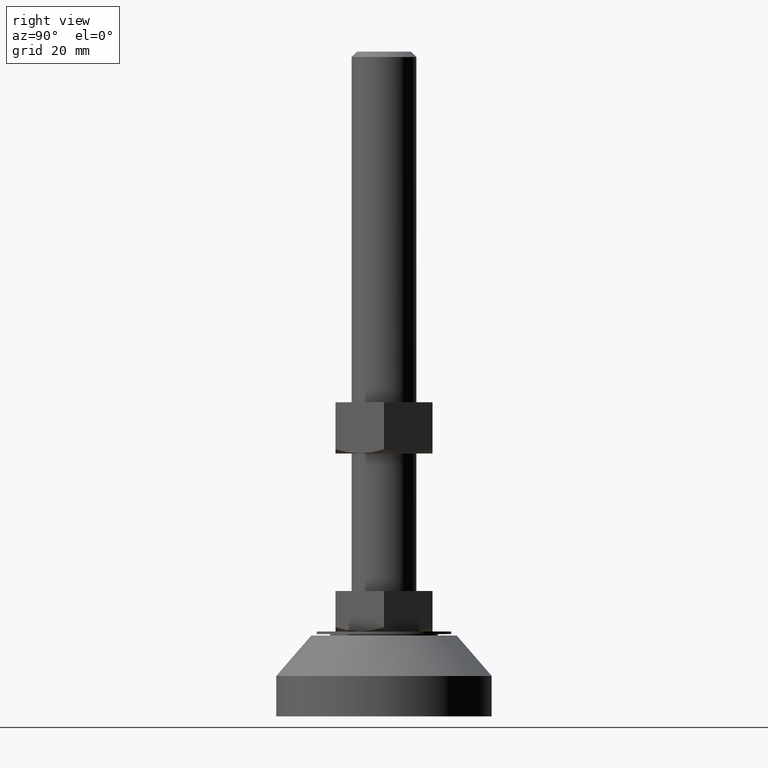
[diagram: clean part render]
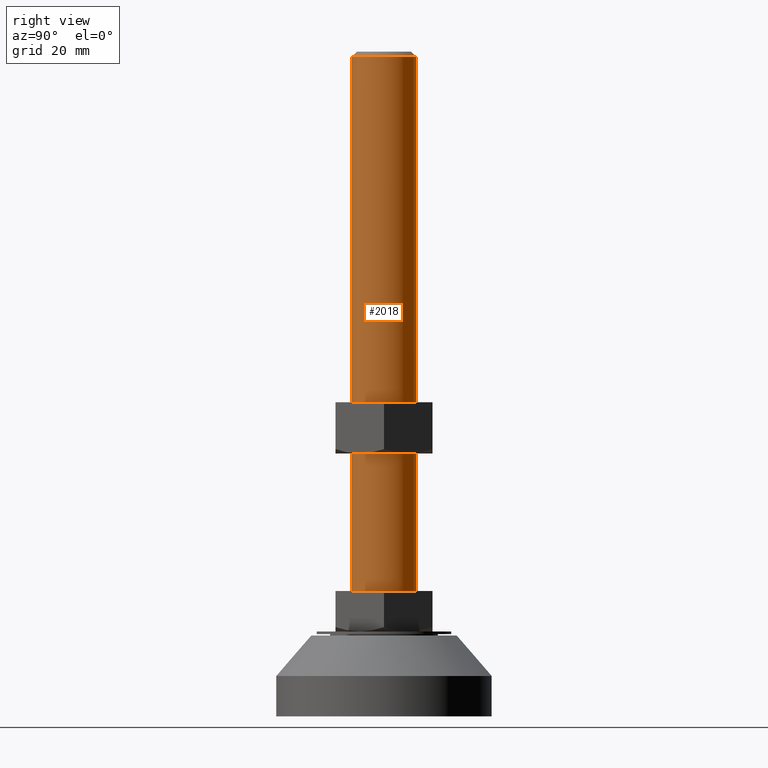
[diagram: same view with one face highlighted and labeled with its STEP entity id]
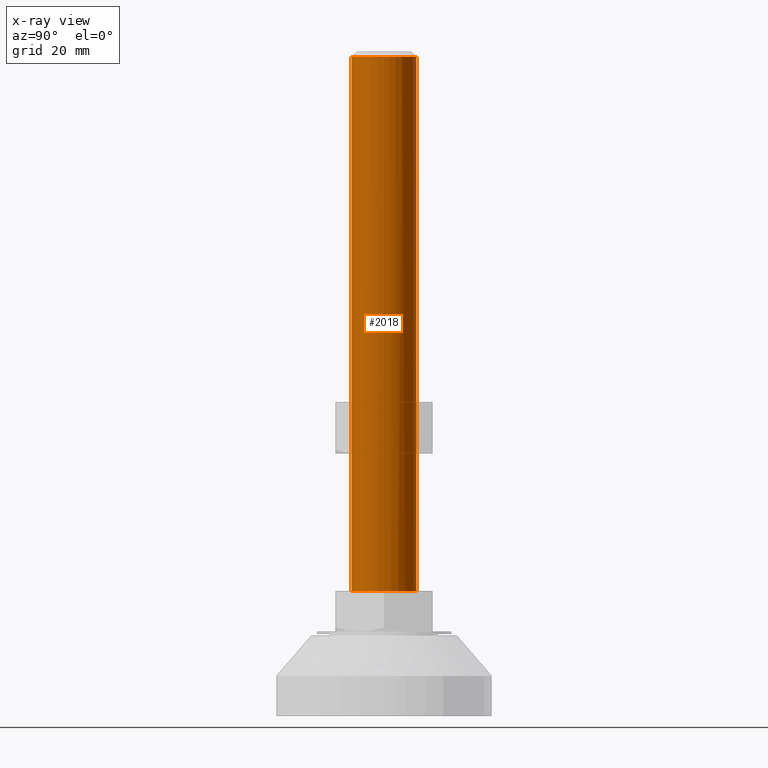
[diagram: x-ray of the same camera — body ghosted, the highlighted face saturated]
A machine part, right view. The second image highlights one B-rep face of the part: STEP entity #2018.
The next image is the same camera in x-ray: the body ghosted, the highlighted face saturated — about 0% of this face is hidden behind the body in this view.
In plain terms, the highlighted face is a freeform B-spline surface patch.
Its self-contained STEP definition (entity closure, byte-faithful):
#1635=CARTESIAN_POINT('',(0.104718426982725,11.999543076818901,244.499999999885400));
#1636=VERTEX_POINT('',#1635);
#1651=CARTESIAN_POINT('',(0.732582475315398,-11.977617581127030,244.499999999881310));
#1652=VERTEX_POINT('',#1651);
#1658=CARTESIAN_POINT('',(12.000000000000600,0.0,244.500000000000000));
#1659=VERTEX_POINT('',#1658);
#1660=CARTESIAN_POINT('',(12.000000000000600,0.0,244.500000000000000));
#1661=CARTESIAN_POINT('',(12.000000000004221,-11.288472802087924,244.499999999940600));
#1662=CARTESIAN_POINT('',(0.732582475315398,-11.977617581127026,244.499999999881280));
#1670=(BOUNDED_CURVE()B_SPLINE_CURVE(2,(#1660,#1661,#1662),.UNSPECIFIED.,.F.,.U.)B_SPLINE_CURVE_WITH_KNOTS((3,3),(0.500000000000000,0.739332962229150),.UNSPECIFIED.)CURVE()GEOMETRIC_REPRESENTATION_ITEM()RATIONAL_B_SPLINE_CURVE((1.0,0.719603993298184,0.976072041645729))REPRESENTATION_ITEM(''));
#1671=EDGE_CURVE('',#1659,#1652,#1670,.T.);
#1673=CARTESIAN_POINT('',(0.104718426982725,11.999543076818894,244.499999999885380));
#1674=CARTESIAN_POINT('',(11.999999999996971,11.895734526165844,244.499999999944630));
#1675=CARTESIAN_POINT('',(12.000000000000600,0.0,244.500000000000000));
#1683=(BOUNDED_CURVE()B_SPLINE_CURVE(2,(#1673,#1674,#1675),.UNSPECIFIED.,.F.,.U.)B_SPLINE_CURVE_WITH_KNOTS((3,3),(0.251539894349809,0.500000000000000),.UNSPECIFIED.)CURVE()GEOMETRIC_REPRESENTATION_ITEM()RATIONAL_B_SPLINE_CURVE((0.996414028066104,0.708910879637541,1.0))REPRESENTATION_ITEM(''));
#1684=EDGE_CURVE('',#1636,#1659,#1683,.T.);
#1722=CARTESIAN_POINT('',(-0.104718426982723,-11.999543076818901,244.499999999885290));
#1723=VERTEX_POINT('',#1722);
#1737=CARTESIAN_POINT('',(0.732582475315398,-11.977617581127030,244.499999999881310));
#1738=CARTESIAN_POINT('',(0.453863671618293,-11.994666030452640,244.499999999882700));
#1739=CARTESIAN_POINT('',(0.174506334172931,-12.001981370697790,244.499999999883810));
#1740=CARTESIAN_POINT('',(-0.104718426982723,-11.999543076818901,244.499999999885290));
#1741=B_SPLINE_CURVE_WITH_KNOTS('',3,(#1737,#1738,#1739,#1740),.UNSPECIFIED.,.F.,.U.,(4,4),(0.000000028863797,0.837768674032188),.UNSPECIFIED.);
#1742=EDGE_CURVE('',#1652,#1723,#1741,.T.);
#1951=CARTESIAN_POINT('',(0.104718425980489,11.999543076770269,249.450000000000100));
#1952=CARTESIAN_POINT('',(12.104261502750761,11.894824650789785,249.449999999999990));
#1953=CARTESIAN_POINT('',(11.999543076770269,-0.104718425980489,249.450000000000100));
#1954=CARTESIAN_POINT('',(11.894824650789785,-12.104261502750761,249.449999999999990));
#1955=CARTESIAN_POINT('',(-0.104718425980489,-11.999543076770269,249.450000000000100));
#1956=CARTESIAN_POINT('',(0.104718425980489,11.999543076770269,41.426250000000010));
#1957=CARTESIAN_POINT('',(12.104261502750761,11.894824650789785,41.426250000000017));
#1958=CARTESIAN_POINT('',(11.999543076770269,-0.104718425980489,41.426250000000010));
#1959=CARTESIAN_POINT('',(11.894824650789785,-12.104261502750761,41.426250000000017));
#1960=CARTESIAN_POINT('',(-0.104718425980489,-11.999543076770269,41.426250000000010));
#1968=(BOUNDED_SURFACE()B_SPLINE_SURFACE(2,1,((#1951,#1956),(#1952,#1957),(#1953,#1958),(#1954,#1959),(#1955,#1960)),.UNSPECIFIED.,.F.,.F.,.U.)B_SPLINE_SURFACE_WITH_KNOTS((3,2,3),(2,2),(0.0,19.882250993908919,39.764501987817852),(0.0,208.023750000000090),.UNSPECIFIED.)GEOMETRIC_REPRESENTATION_ITEM()RATIONAL_B_SPLINE_SURFACE(((1.0,1.0),(0.707106781186548,0.707106781186548),(1.0,1.0),(0.707106781186548,0.707106781186548),(1.0,1.0)))REPRESENTATION_ITEM('')SURFACE());
#1969=ORIENTED_EDGE('',*,*,#1684,.T.);
#1970=ORIENTED_EDGE('',*,*,#1671,.T.);
#1971=ORIENTED_EDGE('',*,*,#1742,.T.);
#1972=CARTESIAN_POINT('',(-0.104718426607569,-11.999543076764800,46.500000000000000));
#1973=VERTEX_POINT('',#1972);
#1974=CARTESIAN_POINT('',(-0.104718426982723,-11.999543076818901,244.499999999885290));
#1975=CARTESIAN_POINT('',(-0.104718426607569,-11.999543076764800,46.500000000000000));
#1976=QUASI_UNIFORM_CURVE('',1,(#1974,#1975),.UNSPECIFIED.,.F.,.U.);
#1977=EDGE_CURVE('',#1723,#1973,#1976,.T.);
#1978=ORIENTED_EDGE('',*,*,#1977,.T.);
#1979=CARTESIAN_POINT('',(12.000000000000220,0.0,46.500000000000000));
#1980=VERTEX_POINT('',#1979);
#1981=CARTESIAN_POINT('',(-0.104718426607569,-11.999543076764803,46.500000000000007));
#1982=CARTESIAN_POINT('',(-0.052360210161978,-12.000000000000217,46.499999999999993));
#1983=CARTESIAN_POINT('',(0.0,-12.000000000000220,46.500000000000000));
#1984=CARTESIAN_POINT('',(12.000000000000222,-12.000000000000222,46.500000000000000));
#1985=CARTESIAN_POINT('',(12.000000000000220,0.0,46.500000000000000));
#1993=(BOUNDED_CURVE()B_SPLINE_CURVE(2,(#1981,#1982,#1983,#1984,#1985),.UNSPECIFIED.,.F.,.U.)B_SPLINE_CURVE_WITH_KNOTS((3,2,3),(0.748460105655808,0.750000000000000,1.0),.UNSPECIFIED.)CURVE()GEOMETRIC_REPRESENTATION_ITEM()RATIONAL_B_SPLINE_CURVE((0.996414028079103,0.998195901555588,1.0,0.707106781186548,1.0))REPRESENTATION_ITEM(''));
#1994=EDGE_CURVE('',#1973,#1980,#1993,.T.);
#1995=ORIENTED_EDGE('',*,*,#1994,.T.);
#1996=CARTESIAN_POINT('',(0.104718426607567,11.999543076764800,46.500000000000000));
#1997=VERTEX_POINT('',#1996);
#1998=CARTESIAN_POINT('',(12.000000000000220,0.0,46.500000000000000));
#1999=CARTESIAN_POINT('',(12.000000000000222,11.895734526518281,46.500000000000000));
#2000=CARTESIAN_POINT('',(0.104718426607567,11.999543076764803,46.500000000000007));
#2008=(BOUNDED_CURVE()B_SPLINE_CURVE(2,(#1998,#1999,#2000),.UNSPECIFIED.,.F.,.U.)B_SPLINE_CURVE_WITH_KNOTS((3,3),(0.0,0.248460105655808),.UNSPECIFIED.)CURVE()GEOMETRIC_REPRESENTATION_ITEM()RATIONAL_B_SPLINE_CURVE((1.0,0.708910879630960,0.996414028079103))REPRESENTATION_ITEM(''));
#2009=EDGE_CURVE('',#1980,#1997,#2008,.T.);
#2010=ORIENTED_EDGE('',*,*,#2009,.T.);
#2011=CARTESIAN_POINT('',(0.104718426982725,11.999543076818901,244.499999999885400));
#2012=CARTESIAN_POINT('',(0.104718426607567,11.999543076764800,46.500000000000000));
#2013=QUASI_UNIFORM_CURVE('',1,(#2011,#2012),.UNSPECIFIED.,.F.,.U.);
#2014=EDGE_CURVE('',#1636,#1997,#2013,.T.);
#2015=ORIENTED_EDGE('',*,*,#2014,.F.);
#2016=EDGE_LOOP('',(#1969,#1970,#1971,#1978,#1995,#2010,#2015));
#2017=FACE_OUTER_BOUND('',#2016,.T.);
#2018=ADVANCED_FACE('',(#2017),#1968,.T.);